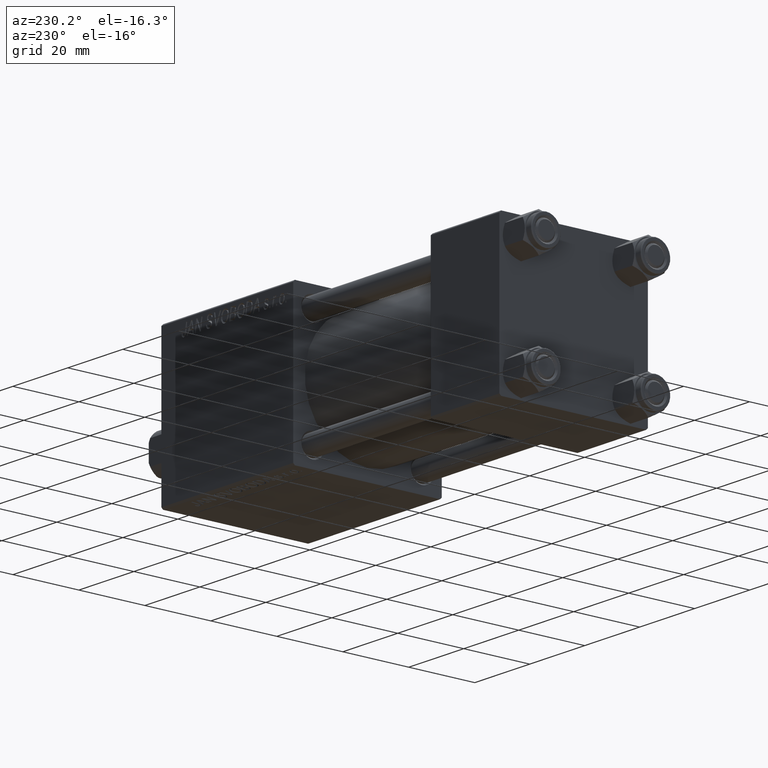
[diagram: clean part render]
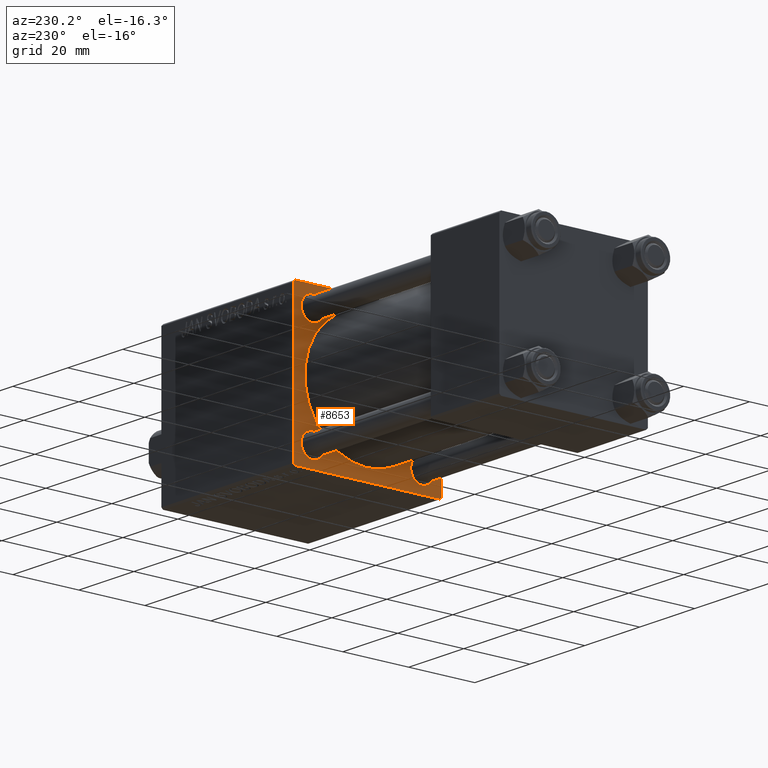
[diagram: same view with one face highlighted and labeled with its STEP entity id]
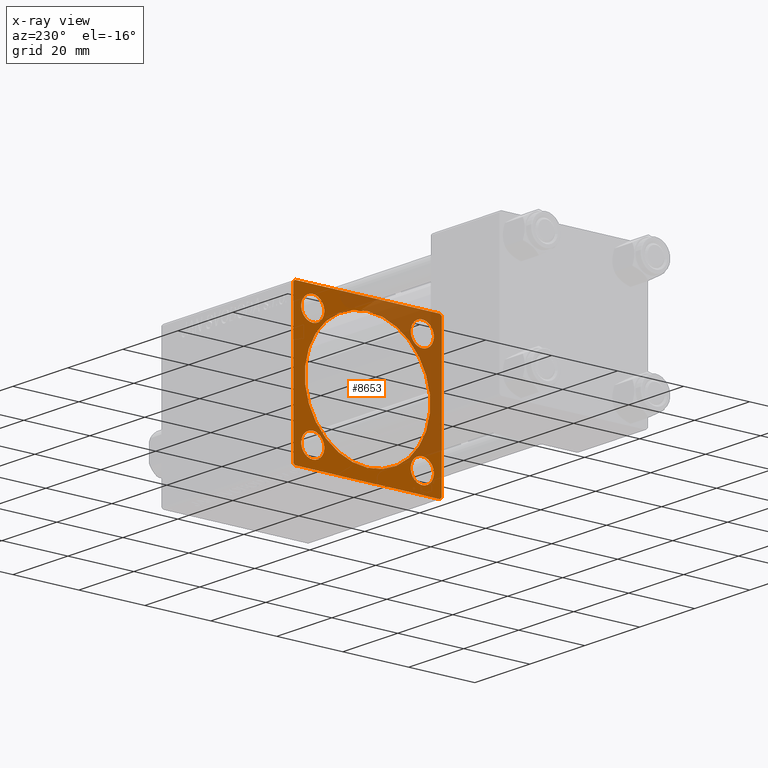
[diagram: x-ray of the same camera — body ghosted, the highlighted face saturated]
A machine part, auxiliary view. The second image highlights one B-rep face of the part: STEP entity #8653.
The next image is the same camera in x-ray: the body ghosted, the highlighted face saturated — about 37% of this face is hidden behind the body in this view.
In plain terms, the highlighted planar face has unit normal (-1, 0, 0).
Its self-contained STEP definition (entity closure, byte-faithful):
#261 = CIRCLE ( 'NONE', #40770, 3.500000000000013323 ) ;
#421 = CARTESIAN_POINT ( 'NONE',  ( 75.00000000000001421, 16.59999999999999787, 16.60000000000000497 ) ) ;
#581 = DIRECTION ( 'NONE',  ( 0.000000000000000000, 0.000000000000000000, -1.000000000000000000 ) ) ;
#719 = CARTESIAN_POINT ( 'NONE',  ( 75.00000000000001421, 16.59999999999999787, -20.10000000000001208 ) ) ;
#1068 = AXIS2_PLACEMENT_3D ( 'NONE', #20387, #31814, #47267 ) ;
#1698 = VERTEX_POINT ( 'NONE', #11177 ) ;
#1748 = VECTOR ( 'NONE', #34692, 1000.000000000000000 ) ;
#1778 = DIRECTION ( 'NONE',  ( 0.000000000000000000, 0.000000000000000000, 1.000000000000000000 ) ) ;
#2596 = CARTESIAN_POINT ( 'NONE',  ( 75.00000000000001421, -16.59999999999999076, 16.60000000000000853 ) ) ;
#3035 = EDGE_CURVE ( 'NONE', #1698, #26204, #34181, .T. ) ;
#3177 = ORIENTED_EDGE ( 'NONE', *, *, #45844, .T. ) ;
#3649 = CARTESIAN_POINT ( 'NONE',  ( 75.00000000000001421, -22.25000000000015277, -22.24999999999984013 ) ) ;
#3781 = CARTESIAN_POINT ( 'NONE',  ( 75.00000000000001421, 0.000000000000000000, 0.000000000000000000 ) ) ;
#3961 = CARTESIAN_POINT ( 'NONE',  ( 75.00000000000001421, 22.50000000000000355, 22.50000000000000355 ) ) ;
#4256 = ORIENTED_EDGE ( 'NONE', *, *, #33492, .T. ) ;
#4759 = EDGE_CURVE ( 'NONE', #12197, #39574, #41053, .T. ) ;
#4797 = DIRECTION ( 'NONE',  ( -1.000000000000000000, 0.000000000000000000, -0.000000000000000000 ) ) ;
#4903 = CIRCLE ( 'NONE', #35709, 3.500000000000010214 ) ;
#4935 = VERTEX_POINT ( 'NONE', #9731 ) ;
#5464 = EDGE_LOOP ( 'NONE', ( #15437, #3177 ) ) ;
#5591 = FACE_BOUND ( 'NONE', #42886, .T. ) ;
#5706 = DIRECTION ( 'NONE',  ( 1.000000000000000000, -0.000000000000000000, 0.000000000000000000 ) ) ;
#6042 = CARTESIAN_POINT ( 'NONE',  ( 75.00000000000001421, -16.59999999999999076, -13.09999999999999787 ) ) ;
#6524 = CARTESIAN_POINT ( 'NONE',  ( 75.00000000000001421, -21.99999999999998224, 22.49999999999999289 ) ) ;
#6542 = CARTESIAN_POINT ( 'NONE',  ( 75.00000000000001421, -16.59999999999999076, 13.09999999999999432 ) ) ;
#7013 = DIRECTION ( 'NONE',  ( 0.000000000000000000, 0.000000000000000000, -1.000000000000000000 ) ) ;
#7146 = VECTOR ( 'NONE', #10111, 1000.000000000000000 ) ;
#7655 = CARTESIAN_POINT ( 'NONE',  ( 75.00000000000001421, 21.99999999999996092, 22.50000000000000355 ) ) ;
#8149 = CIRCLE ( 'NONE', #36532, 3.500000000000010214 ) ;
#8653 = ADVANCED_FACE ( 'NONE', ( #32514, #9396, #24898, #21093, #5591, #32672 ), #19293, .T. ) ;
#9396 = FACE_BOUND ( 'NONE', #46243, .T. ) ;
#9731 = CARTESIAN_POINT ( 'NONE',  ( 75.00000000000001421, 16.59999999999999787, 20.10000000000001208 ) ) ;
#9766 = DIRECTION ( 'NONE',  ( 0.000000000000000000, 0.000000000000000000, 1.000000000000000000 ) ) ;
#9897 = ORIENTED_EDGE ( 'NONE', *, *, #10980, .T. ) ;
#9972 = DIRECTION ( 'NONE',  ( 0.000000000000000000, 0.000000000000000000, 1.000000000000000000 ) ) ;
#10111 = DIRECTION ( 'NONE',  ( -0.000000000000000000, -0.7071067811865573427, -0.7071067811865378028 ) ) ;
#10150 = EDGE_CURVE ( 'NONE', #18967, #31102, #4903, .T. ) ;
#10542 = VECTOR ( 'NONE', #46024, 999.9999999999998863 ) ;
#10659 = CARTESIAN_POINT ( 'NONE',  ( 75.00000000000001421, 16.59999999999999787, 16.60000000000000497 ) ) ;
#10865 = CARTESIAN_POINT ( 'NONE',  ( 75.00000000000001421, -2.752562955852396712E-16, -19.00000000000000000 ) ) ;
#10980 = EDGE_CURVE ( 'NONE', #49240, #19831, #8149, .T. ) ;
#11177 = CARTESIAN_POINT ( 'NONE',  ( 75.00000000000001421, -22.49999999999999645, 22.00000000000000711 ) ) ;
#11921 = EDGE_CURVE ( 'NONE', #39574, #45934, #32828, .T. ) ;
#12197 = VERTEX_POINT ( 'NONE', #26959 ) ;
#12551 = DIRECTION ( 'NONE',  ( 0.000000000000000000, 0.000000000000000000, 1.000000000000000000 ) ) ;
#12638 = EDGE_CURVE ( 'NONE', #24007, #45428, #23029, .T. ) ;
#12707 = ORIENTED_EDGE ( 'NONE', *, *, #34938, .T. ) ;
#12948 = AXIS2_PLACEMENT_3D ( 'NONE', #3781, #4797, #35518 ) ;
#12956 = ORIENTED_EDGE ( 'NONE', *, *, #34132, .T. ) ;
#13509 = EDGE_LOOP ( 'NONE', ( #45877, #44392 ) ) ;
#13628 = ORIENTED_EDGE ( 'NONE', *, *, #40067, .T. ) ;
#14044 = DIRECTION ( 'NONE',  ( 1.000000000000000000, -0.000000000000000000, 0.000000000000000000 ) ) ;
#15018 = ORIENTED_EDGE ( 'NONE', *, *, #25900, .T. ) ;
#15166 = DIRECTION ( 'NONE',  ( 1.000000000000000000, -0.000000000000000000, 0.000000000000000000 ) ) ;
#15337 = EDGE_LOOP ( 'NONE', ( #26853, #46441, #19936, #15018, #21001, #20066, #12956, #17266 ) ) ;
#15437 = ORIENTED_EDGE ( 'NONE', *, *, #48266, .T. ) ;
#15710 = VERTEX_POINT ( 'NONE', #36688 ) ;
#16606 = CARTESIAN_POINT ( 'NONE',  ( 75.00000000000001421, -16.59999999999999076, 16.60000000000000853 ) ) ;
#16837 = DIRECTION ( 'NONE',  ( 0.000000000000000000, -1.000000000000000000, -7.709882115452476934E-17 ) ) ;
#17059 = AXIS2_PLACEMENT_3D ( 'NONE', #10659, #34009, #49461 ) ;
#17266 = ORIENTED_EDGE ( 'NONE', *, *, #4759, .T. ) ;
#17314 = CARTESIAN_POINT ( 'NONE',  ( 75.00000000000001421, 22.00000000000000355, -22.49999999999999645 ) ) ;
#17366 = DIRECTION ( 'NONE',  ( 1.000000000000000000, -0.000000000000000000, 0.000000000000000000 ) ) ;
#18703 = CARTESIAN_POINT ( 'NONE',  ( 75.00000000000001421, 16.59999999999999787, -13.09999999999999432 ) ) ;
#18967 = VERTEX_POINT ( 'NONE', #18703 ) ;
#19293 = PLANE ( 'NONE',  #12948 ) ;
#19831 = VERTEX_POINT ( 'NONE', #6042 ) ;
#19936 = ORIENTED_EDGE ( 'NONE', *, *, #3035, .F. ) ;
#20027 = EDGE_CURVE ( 'NONE', #4935, #15710, #44782, .T. ) ;
#20066 = ORIENTED_EDGE ( 'NONE', *, *, #35444, .T. ) ;
#20126 = CARTESIAN_POINT ( 'NONE',  ( 75.00000000000001421, -16.59999999999999076, 20.10000000000001918 ) ) ;
#20258 = VECTOR ( 'NONE', #34134, 1000.000000000000000 ) ;
#20387 = CARTESIAN_POINT ( 'NONE',  ( 75.00000000000001421, -16.59999999999999076, -16.60000000000000853 ) ) ;
#20658 = CARTESIAN_POINT ( 'NONE',  ( 75.00000000000001421, 22.50000000000000355, -22.49999999999999645 ) ) ;
#21001 = ORIENTED_EDGE ( 'NONE', *, *, #12638, .F. ) ;
#21093 = FACE_BOUND ( 'NONE', #43537, .T. ) ;
#21287 = CARTESIAN_POINT ( 'NONE',  ( 75.00000000000001421, 22.50000000000000355, 21.99999999999997513 ) ) ;
#21630 = CARTESIAN_POINT ( 'NONE',  ( 75.00000000000001421, 16.59999999999999787, -16.60000000000000497 ) ) ;
#23029 = LINE ( 'NONE', #3961, #1748 ) ;
#23035 = CIRCLE ( 'NONE', #23863, 3.500000000000013323 ) ;
#23863 = AXIS2_PLACEMENT_3D ( 'NONE', #16606, #17366, #12551 ) ;
#24007 = VERTEX_POINT ( 'NONE', #7655 ) ;
#24898 = FACE_BOUND ( 'NONE', #13509, .T. ) ;
#25021 = CARTESIAN_POINT ( 'NONE',  ( 75.00000000000001421, -16.59999999999999076, -16.60000000000000853 ) ) ;
#25290 = LINE ( 'NONE', #48593, #44402 ) ;
#25407 = CARTESIAN_POINT ( 'NONE',  ( 75.00000000000001421, 16.59999999999999787, -16.60000000000000497 ) ) ;
#25900 = EDGE_CURVE ( 'NONE', #1698, #45428, #25290, .T. ) ;
#25951 = CIRCLE ( 'NONE', #27575, 19.00000000000000000 ) ;
#26204 = VERTEX_POINT ( 'NONE', #40866 ) ;
#26496 = VERTEX_POINT ( 'NONE', #6542 ) ;
#26853 = ORIENTED_EDGE ( 'NONE', *, *, #11921, .T. ) ;
#26959 = CARTESIAN_POINT ( 'NONE',  ( 75.00000000000001421, 22.50000000000000355, -21.99999999999999645 ) ) ;
#27575 = AXIS2_PLACEMENT_3D ( 'NONE', #39919, #28260, #581 ) ;
#27596 = DIRECTION ( 'NONE',  ( 0.000000000000000000, 0.000000000000000000, 1.000000000000000000 ) ) ;
#28260 = DIRECTION ( 'NONE',  ( 1.000000000000000000, 0.000000000000000000, 0.000000000000000000 ) ) ;
#28304 = CARTESIAN_POINT ( 'NONE',  ( 75.00000000000001421, -2.602085213965210642E-15, 19.00000000000000000 ) ) ;
#28612 = ORIENTED_EDGE ( 'NONE', *, *, #43017, .T. ) ;
#29118 = VERTEX_POINT ( 'NONE', #21287 ) ;
#30086 = LINE ( 'NONE', #37932, #20258 ) ;
#30668 = DIRECTION ( 'NONE',  ( 1.000000000000000000, 0.000000000000000000, 0.000000000000000000 ) ) ;
#30927 = EDGE_CURVE ( 'NONE', #31102, #18967, #34734, .T. ) ;
#31102 = VERTEX_POINT ( 'NONE', #719 ) ;
#31814 = DIRECTION ( 'NONE',  ( 1.000000000000000000, -0.000000000000000000, 0.000000000000000000 ) ) ;
#32470 = CARTESIAN_POINT ( 'NONE',  ( 75.00000000000001421, 22.24999999999969802, -22.25000000000031619 ) ) ;
#32514 = FACE_BOUND ( 'NONE', #5464, .T. ) ;
#32672 = FACE_OUTER_BOUND ( 'NONE', #15337, .T. ) ;
#32828 = LINE ( 'NONE', #20658, #44683 ) ;
#33034 = VECTOR ( 'NONE', #7013, 1000.000000000000000 ) ;
#33056 = DIRECTION ( 'NONE',  ( 1.000000000000000000, -0.000000000000000000, 0.000000000000000000 ) ) ;
#33492 = EDGE_CURVE ( 'NONE', #39119, #36043, #25951, .T. ) ;
#34009 = DIRECTION ( 'NONE',  ( 1.000000000000000000, -0.000000000000000000, 0.000000000000000000 ) ) ;
#34132 = EDGE_CURVE ( 'NONE', #29118, #12197, #30086, .T. ) ;
#34134 = DIRECTION ( 'NONE',  ( 0.000000000000000000, 0.000000000000000000, -1.000000000000000000 ) ) ;
#34181 = LINE ( 'NONE', #42270, #33034 ) ;
#34244 = EDGE_CURVE ( 'NONE', #45934, #26204, #46531, .T. ) ;
#34692 = DIRECTION ( 'NONE',  ( 0.000000000000000000, -1.000000000000000000, -2.312964634635742957E-16 ) ) ;
#34734 = CIRCLE ( 'NONE', #37953, 3.500000000000010214 ) ;
#34821 = CARTESIAN_POINT ( 'NONE',  ( 75.00000000000001421, 22.24999999999968026, 22.25000000000029488 ) ) ;
#34938 = EDGE_CURVE ( 'NONE', #15710, #4935, #43781, .T. ) ;
#35444 = EDGE_CURVE ( 'NONE', #24007, #29118, #39127, .T. ) ;
#35518 = DIRECTION ( 'NONE',  ( -0.000000000000000000, 0.000000000000000000, 1.000000000000000000 ) ) ;
#35709 = AXIS2_PLACEMENT_3D ( 'NONE', #21630, #33056, #48753 ) ;
#36043 = VERTEX_POINT ( 'NONE', #10865 ) ;
#36532 = AXIS2_PLACEMENT_3D ( 'NONE', #25021, #5706, #9766 ) ;
#36555 = DIRECTION ( 'NONE',  ( 1.000000000000000000, -0.000000000000000000, 0.000000000000000000 ) ) ;
#36688 = CARTESIAN_POINT ( 'NONE',  ( 75.00000000000001421, 16.59999999999999787, 13.09999999999999432 ) ) ;
#37456 = VERTEX_POINT ( 'NONE', #20126 ) ;
#37775 = CARTESIAN_POINT ( 'NONE',  ( 75.00000000000001421, -2.602085213965210642E-15, 0.000000000000000000 ) ) ;
#37932 = CARTESIAN_POINT ( 'NONE',  ( 75.00000000000001421, 22.50000000000000355, 22.50000000000000355 ) ) ;
#37953 = AXIS2_PLACEMENT_3D ( 'NONE', #25407, #36555, #1778 ) ;
#38270 = AXIS2_PLACEMENT_3D ( 'NONE', #37775, #30668, #42065 ) ;
#39119 = VERTEX_POINT ( 'NONE', #28304 ) ;
#39127 = LINE ( 'NONE', #34821, #48631 ) ;
#39574 = VERTEX_POINT ( 'NONE', #17314 ) ;
#39919 = CARTESIAN_POINT ( 'NONE',  ( 75.00000000000001421, -2.602085213965210642E-15, 0.000000000000000000 ) ) ;
#40067 = EDGE_CURVE ( 'NONE', #36043, #39119, #47223, .T. ) ;
#40669 = CARTESIAN_POINT ( 'NONE',  ( 75.00000000000001421, -21.99999999999998224, -22.50000000000000000 ) ) ;
#40770 = AXIS2_PLACEMENT_3D ( 'NONE', #2596, #14044, #9972 ) ;
#40866 = CARTESIAN_POINT ( 'NONE',  ( 75.00000000000001421, -22.49999999999999645, -21.99999999999997868 ) ) ;
#41053 = LINE ( 'NONE', #32470, #7146 ) ;
#41501 = CIRCLE ( 'NONE', #1068, 3.500000000000010214 ) ;
#42065 = DIRECTION ( 'NONE',  ( 0.000000000000000000, 0.000000000000000000, -1.000000000000000000 ) ) ;
#42270 = CARTESIAN_POINT ( 'NONE',  ( 75.00000000000001421, -22.49999999999999645, 22.49999999999999289 ) ) ;
#42336 = AXIS2_PLACEMENT_3D ( 'NONE', #421, #15166, #27596 ) ;
#42886 = EDGE_LOOP ( 'NONE', ( #4256, #13628 ) ) ;
#43017 = EDGE_CURVE ( 'NONE', #19831, #49240, #41501, .T. ) ;
#43537 = EDGE_LOOP ( 'NONE', ( #28612, #9897 ) ) ;
#43781 = CIRCLE ( 'NONE', #17059, 3.500000000000010214 ) ;
#44392 = ORIENTED_EDGE ( 'NONE', *, *, #30927, .T. ) ;
#44402 = VECTOR ( 'NONE', #48102, 1000.000000000000000 ) ;
#44683 = VECTOR ( 'NONE', #16837, 1000.000000000000000 ) ;
#44757 = CARTESIAN_POINT ( 'NONE',  ( 75.00000000000001421, -16.59999999999999076, -20.10000000000001563 ) ) ;
#44782 = CIRCLE ( 'NONE', #42336, 3.500000000000010214 ) ;
#45428 = VERTEX_POINT ( 'NONE', #6524 ) ;
#45844 = EDGE_CURVE ( 'NONE', #26496, #37456, #261, .T. ) ;
#45877 = ORIENTED_EDGE ( 'NONE', *, *, #10150, .T. ) ;
#45934 = VERTEX_POINT ( 'NONE', #40669 ) ;
#46024 = DIRECTION ( 'NONE',  ( 0.000000000000000000, -0.7071067811865425767, 0.7071067811865525687 ) ) ;
#46226 = DIRECTION ( 'NONE',  ( 0.000000000000000000, 0.7071067811865573427, -0.7071067811865378028 ) ) ;
#46243 = EDGE_LOOP ( 'NONE', ( #50074, #12707 ) ) ;
#46441 = ORIENTED_EDGE ( 'NONE', *, *, #34244, .T. ) ;
#46531 = LINE ( 'NONE', #3649, #10542 ) ;
#47223 = CIRCLE ( 'NONE', #38270, 19.00000000000000000 ) ;
#47267 = DIRECTION ( 'NONE',  ( 0.000000000000000000, 0.000000000000000000, 1.000000000000000000 ) ) ;
#48102 = DIRECTION ( 'NONE',  ( -0.000000000000000000, 0.7071067811865573427, 0.7071067811865378028 ) ) ;
#48266 = EDGE_CURVE ( 'NONE', #37456, #26496, #23035, .T. ) ;
#48593 = CARTESIAN_POINT ( 'NONE',  ( 75.00000000000001421, -22.24999999999969447, 22.25000000000030909 ) ) ;
#48631 = VECTOR ( 'NONE', #46226, 1000.000000000000000 ) ;
#48753 = DIRECTION ( 'NONE',  ( 0.000000000000000000, 0.000000000000000000, 1.000000000000000000 ) ) ;
#49240 = VERTEX_POINT ( 'NONE', #44757 ) ;
#49461 = DIRECTION ( 'NONE',  ( 0.000000000000000000, 0.000000000000000000, 1.000000000000000000 ) ) ;
#50074 = ORIENTED_EDGE ( 'NONE', *, *, #20027, .T. ) ;